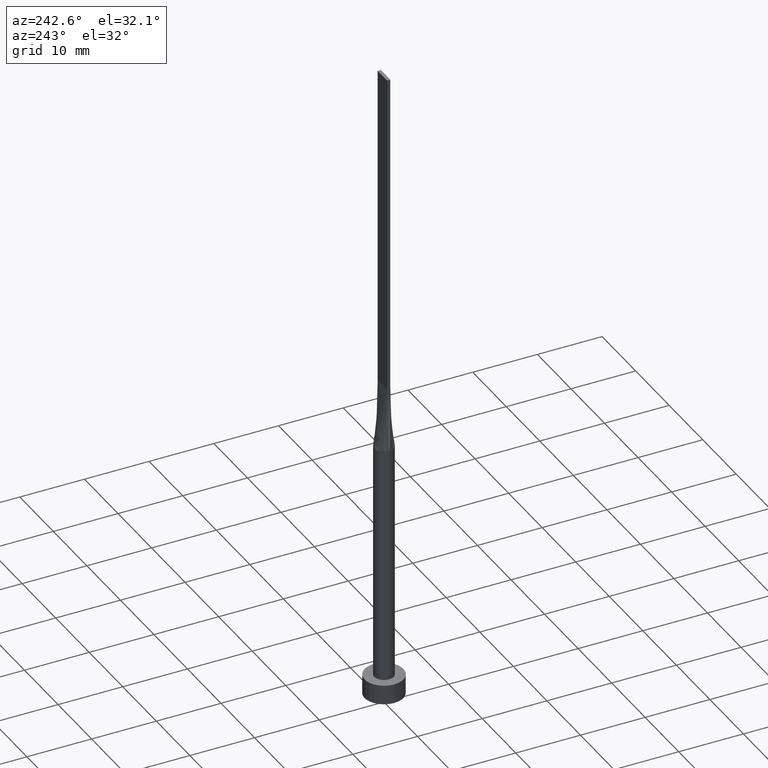
[diagram: clean part render]
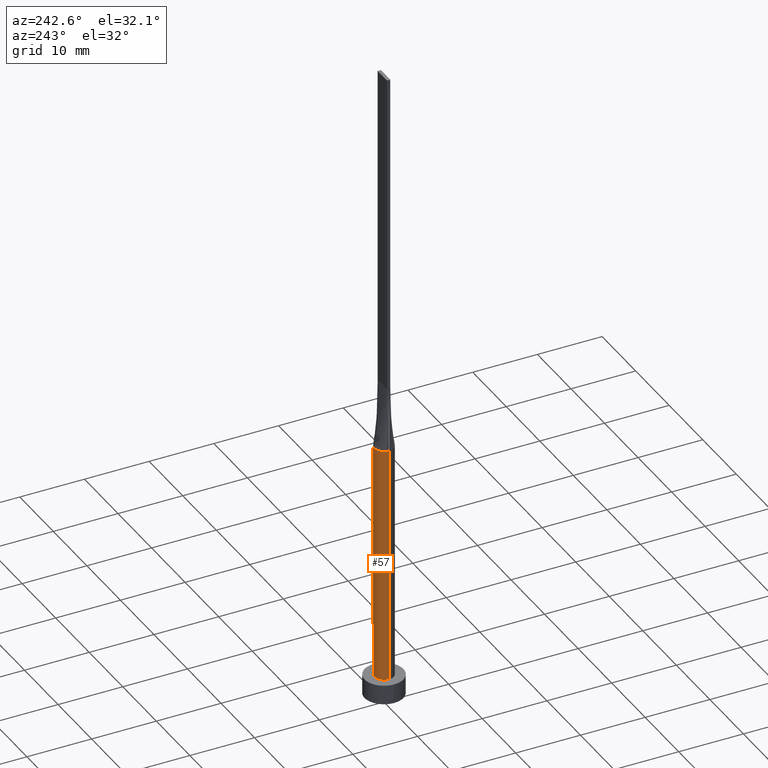
[diagram: same view with one face highlighted and labeled with its STEP entity id]
A machine part, auxiliary view. The second image highlights one B-rep face of the part: STEP entity #57.
In plain terms, the highlighted cylindrical surface (edge-blend (fillet) strip) has radius 1.5 mm, axis along (-0, -0, -1).
Its self-contained STEP definition (entity closure, byte-faithful):
#1 = ORIENTED_EDGE ( 'NONE', *, *, #581, .F. ) ;
#5 = ORIENTED_EDGE ( 'NONE', *, *, #11, .T. ) ;
#11 = EDGE_CURVE ( 'NONE', #354, #326, #384, .T. ) ;
#19 = DIRECTION ( 'NONE',  ( 1.000000000000000000, 0.000000000000000000, 0.000000000000000000 ) ) ;
#26 = CARTESIAN_POINT ( 'NONE',  ( -1.416287091352355976, 0.5163978007200225040, 40.00000000000001421 ) ) ;
#27 = CARTESIAN_POINT ( 'NONE',  ( 1.500000000000000222, 1.836970198721030181E-16, 40.00000000000000000 ) ) ;
#33 = CARTESIAN_POINT ( 'NONE',  ( 1.476765312825354837, 0.2637079867918904474, 40.00000000000000000 ) ) ;
#40 = DIRECTION ( 'NONE',  ( 1.000000000000000000, 0.000000000000000000, 0.000000000000000000 ) ) ;
#46 = ORIENTED_EDGE ( 'NONE', *, *, #309, .F. ) ;
#54 = DIRECTION ( 'NONE',  ( -0.000000000000000000, -0.000000000000000000, -1.000000000000000000 ) ) ;
#57 = ADVANCED_FACE ( 'NONE', ( #298 ), #75, .T. ) ;
#66 = CARTESIAN_POINT ( 'NONE',  ( 1.476765312825354837, 0.2637079867918904474, 40.00000000000000000 ) ) ;
#75 = CYLINDRICAL_SURFACE ( 'NONE', #210, 1.500000000000000222 ) ;
#84 = EDGE_CURVE ( 'NONE', #556, #304, #137, .T. ) ;
#102 = EDGE_CURVE ( 'NONE', #326, #401, #388, .T. ) ;
#114 = AXIS2_PLACEMENT_3D ( 'NONE', #302, #444, #40 ) ;
#115 = CIRCLE ( 'NONE', #494, 1.500000000000000222 ) ;
#120 = CARTESIAN_POINT ( 'NONE',  ( 0.000000000000000000, 0.000000000000000000, 40.00000000000000000 ) ) ;
#131 = CARTESIAN_POINT ( 'NONE',  ( 0.000000000000000000, 0.000000000000000000, 40.00000000000000000 ) ) ;
#137 = CIRCLE ( 'NONE', #114, 1.500000000000000222 ) ;
#154 = ORIENTED_EDGE ( 'NONE', *, *, #102, .T. ) ;
#163 = CARTESIAN_POINT ( 'NONE',  ( -0.4178861784692550208, 1.454504042781961326, 40.00000000000000711 ) ) ;
#168 = CARTESIAN_POINT ( 'NONE',  ( 1.285860877433235405, 0.7868275653575075301, 40.00000000000000000 ) ) ;
#171 = VERTEX_POINT ( 'NONE', #33 ) ;
#176 = CARTESIAN_POINT ( 'NONE',  ( 1.499909062348296462, 3.515891419768138559E-16, 40.00000000000000000 ) ) ;
#199 = CARTESIAN_POINT ( 'NONE',  ( -1.500000000000000222, 0.000000000000000000, 40.00000000000000000 ) ) ;
#200 = AXIS2_PLACEMENT_3D ( 'NONE', #315, #263, #358 ) ;
#204 = CARTESIAN_POINT ( 'NONE',  ( 0.7852726932053988307, 1.293660568283136358, 40.00000000000000711 ) ) ;
#208 = CARTESIAN_POINT ( 'NONE',  ( -0.2093118330951410921, 1.500000000000000222, 39.99999999999998579 ) ) ;
#209 = CARTESIAN_POINT ( 'NONE',  ( 1.193588737715979509, 0.9257784320005622014, 40.00000000000000000 ) ) ;
#210 = AXIS2_PLACEMENT_3D ( 'NONE', #131, #483, #224 ) ;
#224 = DIRECTION ( 'NONE',  ( -1.000000000000000000, 0.000000000000000000, 0.000000000000000000 ) ) ;
#241 = ORIENTED_EDGE ( 'NONE', *, *, #487, .F. ) ;
#242 = CARTESIAN_POINT ( 'NONE',  ( -1.476774769252511055, 0.2637095436881764510, 40.00000000000000000 ) ) ;
#247 = CARTESIAN_POINT ( 'NONE',  ( 0.4178861784692547432, 1.454504042781961770, 40.00000000000001421 ) ) ;
#252 = CARTESIAN_POINT ( 'NONE',  ( -1.455009719257779111, 0.3848231641531745795, 40.00000000000000000 ) ) ;
#263 = DIRECTION ( 'NONE',  ( 0.000000000000000000, 0.000000000000000000, 1.000000000000000000 ) ) ;
#293 = CARTESIAN_POINT ( 'NONE',  ( 1.455009719257779111, 0.3848231641531748570, 39.99999999999999289 ) ) ;
#296 = CARTESIAN_POINT ( 'NONE',  ( 0.2093118330951408979, 1.500000000000000666, 40.00000000000000000 ) ) ;
#298 = FACE_OUTER_BOUND ( 'NONE', #359, .T. ) ;
#302 = CARTESIAN_POINT ( 'NONE',  ( 0.000000000000000000, 0.000000000000000000, 40.00000000000000000 ) ) ;
#304 = VERTEX_POINT ( 'NONE', #417 ) ;
#309 = EDGE_CURVE ( 'NONE', #304, #401, #324, .T. ) ;
#315 = CARTESIAN_POINT ( 'NONE',  ( 0.000000000000000000, 0.000000000000000000, 3.000000000000000000 ) ) ;
#324 = LINE ( 'NONE', #199, #332 ) ;
#326 = VERTEX_POINT ( 'NONE', #555 ) ;
#332 = VECTOR ( 'NONE', #54, 1000.000000000000000 ) ;
#354 = VERTEX_POINT ( 'NONE', #176 ) ;
#358 = DIRECTION ( 'NONE',  ( 1.000000000000000000, 0.000000000000000000, 0.000000000000000000 ) ) ;
#359 = EDGE_LOOP ( 'NONE', ( #1, #5, #154, #46, #489, #241 ) ) ;
#380 = B_SPLINE_CURVE_WITH_KNOTS ( 'NONE', 3,
 ( #66, #293, #389, #168, #209, #557, #204, #247, #296, #208, #163, #430, #512, #427, #472, #26, #252, #242 ),
 .UNSPECIFIED., .F., .F.,
 ( 4, 2, 2, 2, 2, 2, 2, 2, 4 ),
 ( 0.000000000000000000, 0.1249999999999999167, 0.2499999999999998335, 0.3749999999999998335, 0.4999999999999998890, 0.6249999999999998890, 0.7499999999999998890, 0.8750000000000000000, 1.000000000000000000 ),
 .UNSPECIFIED. ) ;
#384 = LINE ( 'NONE', #27, #467 ) ;
#388 = CIRCLE ( 'NONE', #200, 1.500000000000000222 ) ;
#389 = CARTESIAN_POINT ( 'NONE',  ( 1.416287091352355976, 0.5163978007200227260, 40.00000000000001421 ) ) ;
#401 = VERTEX_POINT ( 'NONE', #439 ) ;
#417 = CARTESIAN_POINT ( 'NONE',  ( -1.499909062348296462, -1.026848616785427865E-15, 40.00000000000000000 ) ) ;
#427 = CARTESIAN_POINT ( 'NONE',  ( -1.193588737715979731, 0.9257784320005616463, 39.99999999999999289 ) ) ;
#430 = CARTESIAN_POINT ( 'NONE',  ( -0.7852726932053990527, 1.293660568283136136, 40.00000000000000711 ) ) ;
#439 = CARTESIAN_POINT ( 'NONE',  ( -1.500000000000000222, 0.000000000000000000, 3.000000000000000000 ) ) ;
#444 = DIRECTION ( 'NONE',  ( 0.000000000000000000, 0.000000000000000000, 1.000000000000000000 ) ) ;
#463 = CARTESIAN_POINT ( 'NONE',  ( -1.476774769252511055, 0.2637095436881764510, 40.00000000000000000 ) ) ;
#466 = DIRECTION ( 'NONE',  ( 0.000000000000000000, 0.000000000000000000, 1.000000000000000000 ) ) ;
#467 = VECTOR ( 'NONE', #571, 1000.000000000000000 ) ;
#472 = CARTESIAN_POINT ( 'NONE',  ( -1.285860877433235183, 0.7868275653575075301, 40.00000000000000000 ) ) ;
#483 = DIRECTION ( 'NONE',  ( -0.000000000000000000, -0.000000000000000000, -1.000000000000000000 ) ) ;
#487 = EDGE_CURVE ( 'NONE', #171, #556, #380, .T. ) ;
#489 = ORIENTED_EDGE ( 'NONE', *, *, #84, .F. ) ;
#494 = AXIS2_PLACEMENT_3D ( 'NONE', #120, #466, #19 ) ;
#512 = CARTESIAN_POINT ( 'NONE',  ( -0.9436169880431073409, 1.179536671679307647, 40.00000000000000000 ) ) ;
#555 = CARTESIAN_POINT ( 'NONE',  ( 1.500000000000000222, 1.836970198721030181E-16, 3.000000000000000000 ) ) ;
#556 = VERTEX_POINT ( 'NONE', #463 ) ;
#557 = CARTESIAN_POINT ( 'NONE',  ( 0.9436169880431070078, 1.179536671679307869, 39.99999999999998579 ) ) ;
#571 = DIRECTION ( 'NONE',  ( -0.000000000000000000, -0.000000000000000000, -1.000000000000000000 ) ) ;
#581 = EDGE_CURVE ( 'NONE', #354, #171, #115, .T. ) ;